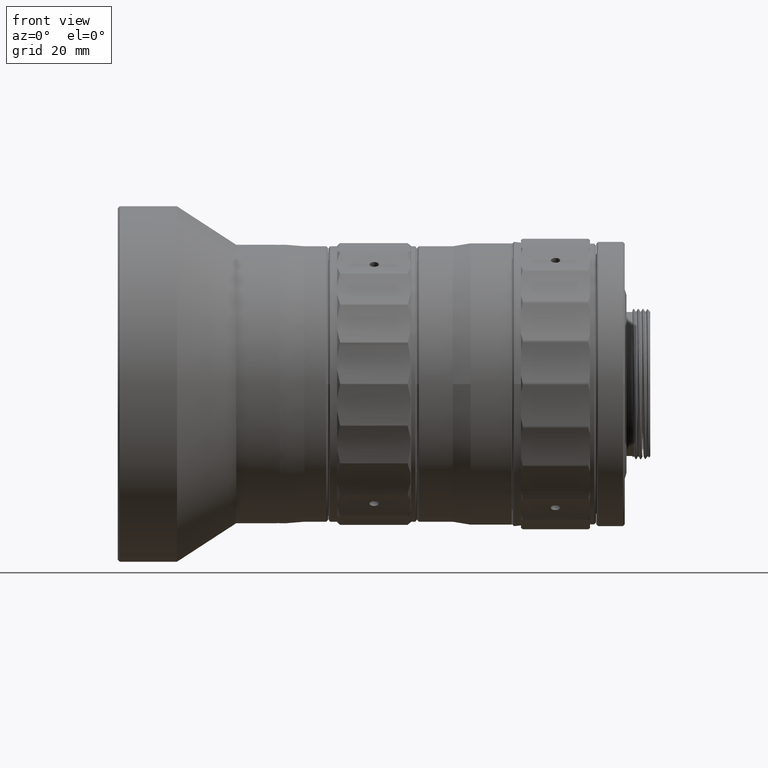
[diagram: clean part render]
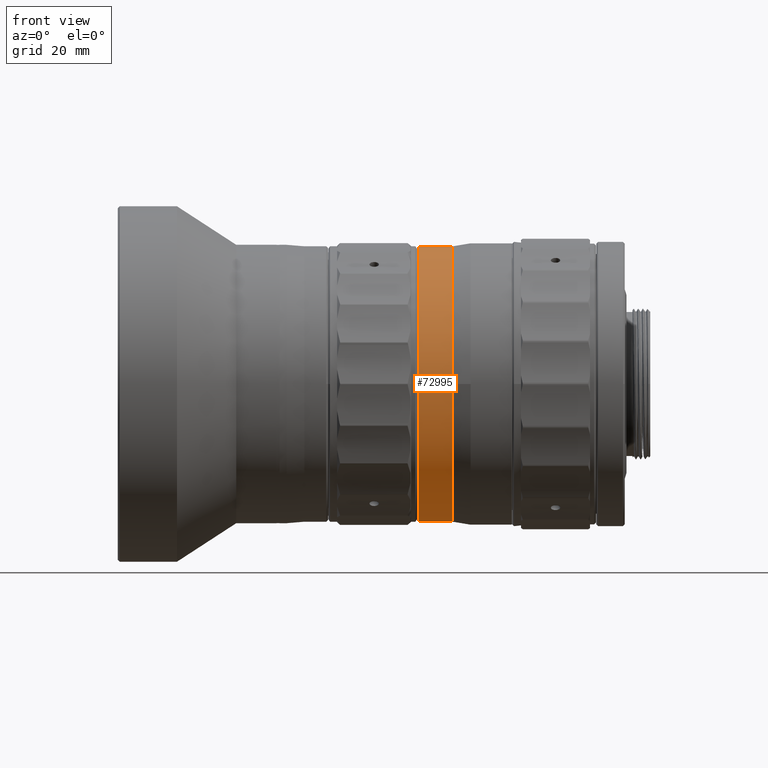
[diagram: same view with one face highlighted and labeled with its STEP entity id]
A machine part, front view. The second image highlights one B-rep face of the part: STEP entity #72995.
In plain terms, the highlighted cylindrical surface (partial cylindrical patch) has radius 23.25 mm, axis along (1, 0, -0).
Its self-contained STEP definition (entity closure, byte-faithful):
#1987 = AXIS2_PLACEMENT_3D ( 'NONE', #4091, #44199, #76892 ) ;
#4091 = CARTESIAN_POINT ( 'NONE',  ( 41.89390397744755745, 3.366502126235488891E-14, -4.857225732735059864E-14 ) ) ;
#4970 = CARTESIAN_POINT ( 'NONE',  ( 47.61389999999973810, 2.973635834133892157E-28, -23.25000000000153477 ) ) ;
#7006 = DIRECTION ( 'NONE',  ( 5.968940992607974681E-16, -1.000000000000000000, -8.881784197001252323E-16 ) ) ;
#7155 = EDGE_CURVE ( 'NONE', #8927, #44707, #42605, .T. ) ;
#7429 = DIRECTION ( 'NONE',  ( 1.000000000000000000, 0.000000000000000000, -1.492235248152092524E-16 ) ) ;
#8927 = VERTEX_POINT ( 'NONE', #58393 ) ;
#11290 = DIRECTION ( 'NONE',  ( -1.000000000000000000, 4.440892098500009864E-16, -0.000000000000000000 ) ) ;
#11611 = CARTESIAN_POINT ( 'NONE',  ( 41.89390860484999024, 0.000000000000000000, -23.24999999999999645 ) ) ;
#13833 = EDGE_CURVE ( 'NONE', #82972, #66678, #16513, .T. ) ;
#15369 = CIRCLE ( 'NONE', #20912, 23.25000000000153477 ) ;
#16513 = CIRCLE ( 'NONE', #51317, 23.24999999999999645 ) ;
#20520 = DIRECTION ( 'NONE',  ( -2.984470496304184556E-16, 0.000000000000000000, -1.000000000000000000 ) ) ;
#20912 = AXIS2_PLACEMENT_3D ( 'NONE', #79409, #26653, #7006 ) ;
#21242 = ORIENTED_EDGE ( 'NONE', *, *, #7155, .T. ) ;
#26156 = AXIS2_PLACEMENT_3D ( 'NONE', #27932, #7429, #20520 ) ;
#26653 = DIRECTION ( 'NONE',  ( -1.000000000000000000, 4.440892098500009864E-16, -0.000000000000000000 ) ) ;
#27932 = CARTESIAN_POINT ( 'NONE',  ( 41.89390984612001034, 0.000000000000000000, 0.000000000000000000 ) ) ;
#28722 = ORIENTED_EDGE ( 'NONE', *, *, #46147, .T. ) ;
#32676 = EDGE_LOOP ( 'NONE', ( #34911, #56667, #60981, #35126, #28722, #21242 ) ) ;
#34005 = DIRECTION ( 'NONE',  ( 1.000000000000000000, 0.000000000000000000, -1.492235248152092524E-16 ) ) ;
#34008 = CARTESIAN_POINT ( 'NONE',  ( 41.89390860484999024, 0.000000000000000000, 0.000000000000000000 ) ) ;
#34911 = ORIENTED_EDGE ( 'NONE', *, *, #47377, .F. ) ;
#35083 = VECTOR ( 'NONE', #60094, 1000.000000000000000 ) ;
#35126 = ORIENTED_EDGE ( 'NONE', *, *, #83881, .T. ) ;
#42605 = CIRCLE ( 'NONE', #60732, 23.25000000000153477 ) ;
#43418 = VERTEX_POINT ( 'NONE', #43669 ) ;
#43669 = CARTESIAN_POINT ( 'NONE',  ( 41.89390397744755745, 2.847304749537905272E-15, 23.24999999999994671 ) ) ;
#44199 = DIRECTION ( 'NONE',  ( -1.000000000000000000, 4.535226693059196814E-16, -0.000000000000000000 ) ) ;
#44707 = VERTEX_POINT ( 'NONE', #58588 ) ;
#46147 = EDGE_CURVE ( 'NONE', #63251, #8927, #15369, .T. ) ;
#47377 = EDGE_CURVE ( 'NONE', #43418, #44707, #53600, .T. ) ;
#51317 = AXIS2_PLACEMENT_3D ( 'NONE', #34008, #54027, #60609 ) ;
#53600 = LINE ( 'NONE', #80209, #85102 ) ;
#54027 = DIRECTION ( 'NONE',  ( -1.000000000000000000, -0.000000000000000000, -0.000000000000000000 ) ) ;
#56667 = ORIENTED_EDGE ( 'NONE', *, *, #58789, .F. ) ;
#57929 = DIRECTION ( 'NONE',  ( 5.968940992607974681E-16, -1.000000000000000000, 0.000000000000000000 ) ) ;
#58393 = CARTESIAN_POINT ( 'NONE',  ( 47.61389999999973099, -23.25000000000153833, 2.877919977996277165E-15 ) ) ;
#58588 = CARTESIAN_POINT ( 'NONE',  ( 47.61389999999973810, 2.847303808018081288E-15, 23.25000000000153477 ) ) ;
#58789 = EDGE_CURVE ( 'NONE', #66678, #43418, #64675, .T. ) ;
#60094 = DIRECTION ( 'NONE',  ( 1.000000000000000000, 0.000000000000000000, -1.492235248152092524E-16 ) ) ;
#60609 = DIRECTION ( 'NONE',  ( 0.000000000000000000, -1.000000000000000000, 4.082956195361475693E-12 ) ) ;
#60639 = CYLINDRICAL_SURFACE ( 'NONE', #26156, 23.24999999999999645 ) ;
#60732 = AXIS2_PLACEMENT_3D ( 'NONE', #77989, #11290, #57929 ) ;
#60981 = ORIENTED_EDGE ( 'NONE', *, *, #13833, .F. ) ;
#63251 = VERTEX_POINT ( 'NONE', #4970 ) ;
#64675 = CIRCLE ( 'NONE', #1987, 23.24999999999999645 ) ;
#66678 = VERTEX_POINT ( 'NONE', #84216 ) ;
#68021 = FACE_OUTER_BOUND ( 'NONE', #32676, .T. ) ;
#72995 = ADVANCED_FACE ( 'NONE', ( #68021 ), #60639, .T. ) ;
#73615 = CARTESIAN_POINT ( 'NONE',  ( 41.89390984612000324, 0.000000000000000000, -23.24999999999999645 ) ) ;
#74029 = LINE ( 'NONE', #73615, #35083 ) ;
#76892 = DIRECTION ( 'NONE',  ( 5.968940992608369112E-16, 1.000000000000000000, 1.776356839400250465E-15 ) ) ;
#77989 = CARTESIAN_POINT ( 'NONE',  ( 47.61389999999973810, -4.399473909710587999E-15, 0.000000000000000000 ) ) ;
#79409 = CARTESIAN_POINT ( 'NONE',  ( 47.61389999999973810, -4.399473909710587999E-15, 0.000000000000000000 ) ) ;
#80209 = CARTESIAN_POINT ( 'NONE',  ( 41.89390984612001745, 2.847303808017595744E-15, 23.24999999999999645 ) ) ;
#82972 = VERTEX_POINT ( 'NONE', #11611 ) ;
#83881 = EDGE_CURVE ( 'NONE', #82972, #63251, #74029, .T. ) ;
#84216 = CARTESIAN_POINT ( 'NONE',  ( 41.89390605346346774, -23.25000207601551949, -3.163866545631763426E-11 ) ) ;
#85102 = VECTOR ( 'NONE', #34005, 1000.000000000000000 ) ;